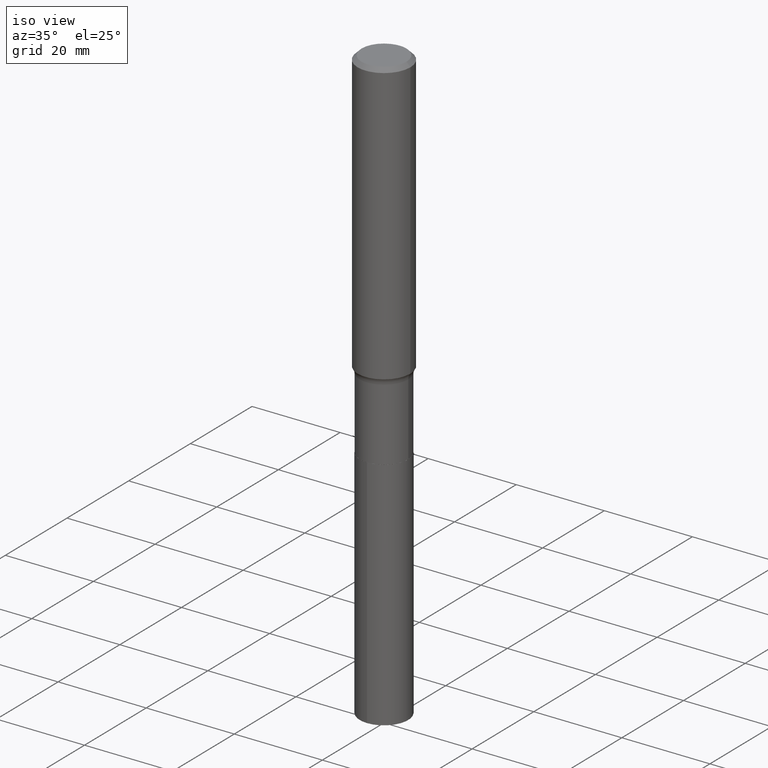
[diagram: clean part render]
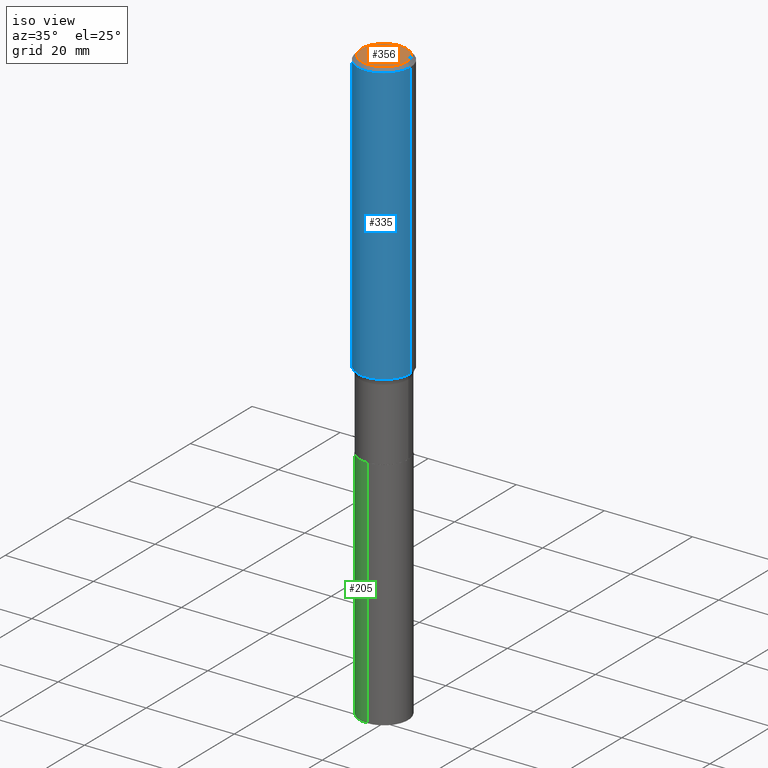
[diagram: same view with three faces highlighted in distinct colors, each labeled with its STEP entity id]
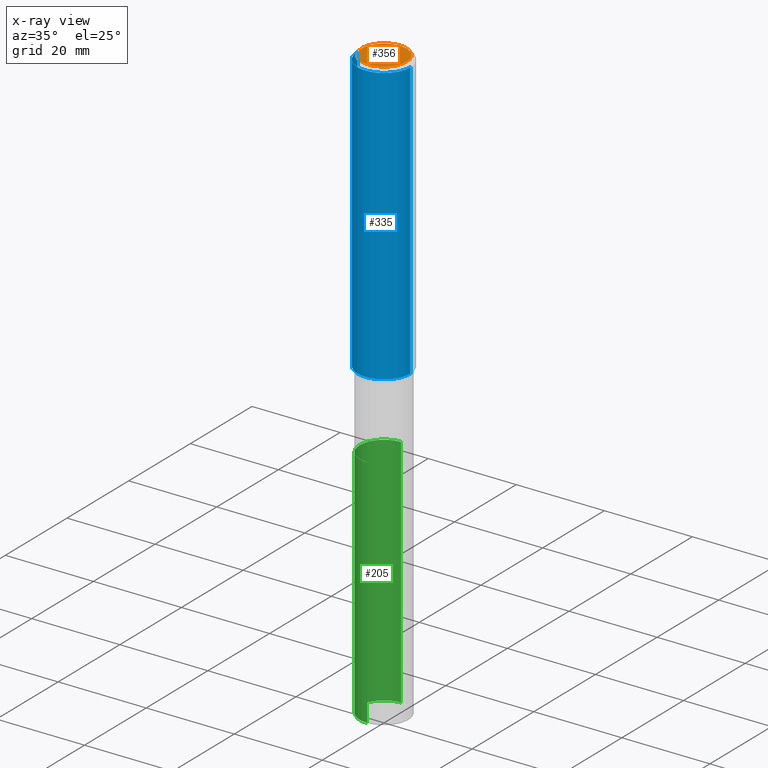
[diagram: x-ray of the same camera — body ghosted, the three highlighted faces saturated]
A machine part, iso view with three faces highlighted in distinct colors.
The next image is the same camera in x-ray (body ghosted, the three faces saturated) — at least one of them is partly hidden behind the body in this view.
Their STEP definitions:

[orange] entity #356 — the highlighted planar face has unit normal (0, -0, -1).
#24 = CIRCLE ( 'NONE', #40, 0.2007700000000000040 ) ;
#40 = AXIS2_PLACEMENT_3D ( 'NONE', #350, #312, #98 ) ;
#43 = CARTESIAN_POINT ( 'NONE',  ( -1.001697619218023151E-46, 1.430158722866391908E-32, 4.096137381448114529E-18 ) ) ;
#48 = CARTESIAN_POINT ( 'NONE',  ( -5.008488096090115757E-47, 7.150793614331959538E-33, 2.048068690724057264E-18 ) ) ;
#79 = ORIENTED_EDGE ( 'NONE', *, *, #148, .T. ) ;
#98 = DIRECTION ( 'NONE',  ( 1.000000000000000000, -6.982962677686266711E-15, 4.876140833081945105E-29 ) ) ;
#103 = ORIENTED_EDGE ( 'NONE', *, *, #215, .T. ) ;
#104 = DIRECTION ( 'NONE',  ( -2.445468806185136597E-29, 3.491481338843145583E-15, 1.000000000000000000 ) ) ;
#127 = EDGE_LOOP ( 'NONE', ( #79, #103 ) ) ;
#143 = AXIS2_PLACEMENT_3D ( 'NONE', #43, #104, #147 ) ;
#147 = DIRECTION ( 'NONE',  ( 1.000000000000000000, -6.982962677686266711E-15, 4.876140833081945105E-29 ) ) ;
#148 = EDGE_CURVE ( 'NONE', #378, #192, #24, .T. ) ;
#192 = VERTEX_POINT ( 'NONE', #462 ) ;
#215 = EDGE_CURVE ( 'NONE', #192, #378, #225, .T. ) ;
#222 = CARTESIAN_POINT ( 'NONE',  ( -0.2007700000000000040, 1.463821008716676943E-15, 4.096137381438094301E-18 ) ) ;
#225 = CIRCLE ( 'NONE', #143, 0.2007700000000000040 ) ;
#312 = DIRECTION ( 'NONE',  ( -2.445468806185136597E-29, 3.491481338843145583E-15, 1.000000000000000000 ) ) ;
#336 = DIRECTION ( 'NONE',  ( 2.438088387897960049E-29, -3.491481338843145188E-15, -1.000000000000000000 ) ) ;
#342 = PLANE ( 'NONE',  #347 ) ;
#347 = AXIS2_PLACEMENT_3D ( 'NONE', #48, #336, #406 ) ;
#350 = CARTESIAN_POINT ( 'NONE',  ( -1.001697619218023151E-46, 1.430158722866391908E-32, 4.096137381448114529E-18 ) ) ;
#356 = ADVANCED_FACE ( 'NONE', ( #446 ), #342, .F. ) ;
#378 = VERTEX_POINT ( 'NONE', #222 ) ;
#406 = DIRECTION ( 'NONE',  ( -1.000000000000000000, 6.982962677686265922E-15, -4.876176775795935793E-29 ) ) ;
#446 = FACE_OUTER_BOUND ( 'NONE', #127, .T. ) ;
#462 = CARTESIAN_POINT ( 'NONE',  ( 0.2007700000000000040, -1.560767496960719869E-15, 4.096137381458473721E-18 ) ) ;

[blue] entity #335 — the highlighted cylindrical surface (edge-blend (fillet) strip) has radius 5.9995 mm, axis along (-0, 0, 1).
#12 = DIRECTION ( 'NONE',  ( 1.000000000000000000, -6.982962677686266711E-15, 0.000000000000000000 ) ) ;
#18 = VERTEX_POINT ( 'NONE', #390 ) ;
#44 = DIRECTION ( 'NONE',  ( -2.445468806185136597E-29, 3.491481338843145583E-15, 1.000000000000000000 ) ) ;
#67 = DIRECTION ( 'NONE',  ( -2.445468806185136877E-29, 3.491481338843145188E-15, 1.000000000000000000 ) ) ;
#93 = EDGE_CURVE ( 'NONE', #145, #452, #415, .T. ) ;
#105 = AXIS2_PLACEMENT_3D ( 'NONE', #218, #44, #186 ) ;
#107 = FACE_OUTER_BOUND ( 'NONE', #224, .T. ) ;
#114 = AXIS2_PLACEMENT_3D ( 'NONE', #419, #199, #454 ) ;
#137 = ORIENTED_EDGE ( 'NONE', *, *, #386, .F. ) ;
#145 = VERTEX_POINT ( 'NONE', #383 ) ;
#162 = VECTOR ( 'NONE', #67, 39.37007874015748143 ) ;
#186 = DIRECTION ( 'NONE',  ( 1.000000000000000000, -6.982962677686266711E-15, 4.876176775795936353E-29 ) ) ;
#194 = CARTESIAN_POINT ( 'NONE',  ( -0.2362000000000001598, 1.678301941865357775E-15, -1.161852468318209598E-29 ) ) ;
#197 = VERTEX_POINT ( 'NONE', #246 ) ;
#199 = DIRECTION ( 'NONE',  ( -2.445468806185136597E-29, 3.491481338843145583E-15, 1.000000000000000000 ) ) ;
#218 = CARTESIAN_POINT ( 'NONE',  ( 0.000000000000000000, 0.000000000000000000, 0.000000000000000000 ) ) ;
#224 = EDGE_LOOP ( 'NONE', ( #137, #299, #230, #296 ) ) ;
#227 = DIRECTION ( 'NONE',  ( -2.445468806185136597E-29, 3.491481338843145583E-15, 1.000000000000000000 ) ) ;
#230 = ORIENTED_EDGE ( 'NONE', *, *, #260, .T. ) ;
#246 = CARTESIAN_POINT ( 'NONE',  ( -0.2361999999999999933, -2.766204545647972550E-15, -0.03543000000000023908 ) ) ;
#256 = LINE ( 'NONE', #194, #303 ) ;
#260 = EDGE_CURVE ( 'NONE', #452, #18, #286, .T. ) ;
#261 = DIRECTION ( 'NONE',  ( -2.445468806185136877E-29, 3.491481338843145188E-15, 1.000000000000000000 ) ) ;
#286 = LINE ( 'NONE', #395, #162 ) ;
#287 = CIRCLE ( 'NONE', #405, 0.2361999999999999933 ) ;
#296 = ORIENTED_EDGE ( 'NONE', *, *, #361, .F. ) ;
#299 = ORIENTED_EDGE ( 'NONE', *, *, #93, .T. ) ;
#303 = VECTOR ( 'NONE', #261, 39.37007874015748143 ) ;
#335 = ADVANCED_FACE ( 'NONE', ( #107 ), #401, .T. ) ;
#361 = EDGE_CURVE ( 'NONE', #197, #18, #287, .T. ) ;
#374 = CARTESIAN_POINT ( 'NONE',  ( 8.664295980313996991E-31, -1.237031838352134818E-16, -0.03543000000000023908 ) ) ;
#383 = CARTESIAN_POINT ( 'NONE',  ( -0.2362000000000004096, -7.087007849326089886E-15, -2.510484502287419595 ) ) ;
#386 = EDGE_CURVE ( 'NONE', #145, #197, #256, .T. ) ;
#390 = CARTESIAN_POINT ( 'NONE',  ( 0.2361999999999999933, -1.773078968304709711E-15, -0.03543000000000023908 ) ) ;
#395 = CARTESIAN_POINT ( 'NONE',  ( 0.2362000000000001598, -1.649375784469497314E-15, 1.151752954443000929E-29 ) ) ;
#401 = CYLINDRICAL_SURFACE ( 'NONE', #105, 0.2362000000000001598 ) ;
#404 = CARTESIAN_POINT ( 'NONE',  ( 0.2362000000000004096, -1.041468557566094675E-14, -2.510484502287419595 ) ) ;
#405 = AXIS2_PLACEMENT_3D ( 'NONE', #374, #227, #12 ) ;
#415 = CIRCLE ( 'NONE', #114, 0.2362000000000003264 ) ;
#419 = CARTESIAN_POINT ( 'NONE',  ( 6.139311538755103453E-29, -8.765309791191448647E-15, -2.510484502287419595 ) ) ;
#452 = VERTEX_POINT ( 'NONE', #404 ) ;
#454 = DIRECTION ( 'NONE',  ( 1.000000000000000000, -6.982962677686263555E-15, 0.000000000000000000 ) ) ;

[green] entity #205 — the highlighted cylindrical surface (edge-blend (fillet) strip) has radius 5.5004 mm, axis along (-0, 0, 1).
#1 = CARTESIAN_POINT ( 'NONE',  ( 1.538680294288627061E-15, 0.2165499999999888070, -3.209000000000001407 ) ) ;
#7 = DIRECTION ( 'NONE',  ( -6.982962677686265133E-15, -1.000000000000000000, 2.523064413451178124E-15 ) ) ;
#27 = DIRECTION ( 'NONE',  ( -2.445740082576205296E-29, 3.491092855611041770E-15, 1.000000000000000000 ) ) ;
#58 = CARTESIAN_POINT ( 'NONE',  ( 1.299823801295359673E-28, -1.855640517026451512E-14, -5.315000000000001279 ) ) ;
#59 = DIRECTION ( 'NONE',  ( -6.982962677686265133E-15, -1.000000000000000000, 5.046128826902356247E-15 ) ) ;
#78 = EDGE_CURVE ( 'NONE', #290, #217, #202, .T. ) ;
#109 = CYLINDRICAL_SURFACE ( 'NONE', #172, 0.2165500000000000203 ) ;
#124 = AXIS2_PLACEMENT_3D ( 'NONE', #58, #27, #59 ) ;
#141 = DIRECTION ( 'NONE',  ( -2.445740082576205576E-29, 3.491092855611041770E-15, 1.000000000000000000 ) ) ;
#172 = AXIS2_PLACEMENT_3D ( 'NONE', #464, #216, #7 ) ;
#176 = CARTESIAN_POINT ( 'NONE',  ( -1.512160567852882528E-15, -0.2165500000000112057, -3.209000000000000075 ) ) ;
#177 = CARTESIAN_POINT ( 'NONE',  ( 7.847509399048105518E-29, -1.120416361634765640E-14, -3.209000000000000519 ) ) ;
#184 = EDGE_CURVE ( 'NONE', #294, #290, #277, .T. ) ;
#195 = ORIENTED_EDGE ( 'NONE', *, *, #231, .F. ) ;
#202 = LINE ( 'NONE', #176, #302 ) ;
#205 = ADVANCED_FACE ( 'NONE', ( #365 ), #109, .T. ) ;
#212 = DIRECTION ( 'NONE',  ( -6.982962677686265133E-15, -1.000000000000000000, 2.523064413451178124E-15 ) ) ;
#214 = CARTESIAN_POINT ( 'NONE',  ( -1.512160567852830858E-15, -0.2165500000000185610, -5.315000000000000391 ) ) ;
#216 = DIRECTION ( 'NONE',  ( -2.445740082576205296E-29, 3.491092855611041770E-15, 1.000000000000000000 ) ) ;
#217 = VERTEX_POINT ( 'NONE', #435 ) ;
#231 = EDGE_CURVE ( 'NONE', #294, #258, #393, .T. ) ;
#258 = VERTEX_POINT ( 'NONE', #1 ) ;
#277 = CIRCLE ( 'NONE', #124, 0.2165500000000000203 ) ;
#283 = CARTESIAN_POINT ( 'NONE',  ( 1.538680294288575194E-15, 0.2165499999999888070, -3.209000000000001407 ) ) ;
#290 = VERTEX_POINT ( 'NONE', #214 ) ;
#294 = VERTEX_POINT ( 'NONE', #399 ) ;
#297 = EDGE_LOOP ( 'NONE', ( #195, #325, #391, #449 ) ) ;
#302 = VECTOR ( 'NONE', #315, 39.37007874015748143 ) ;
#315 = DIRECTION ( 'NONE',  ( -2.445740082576205576E-29, 3.491092855611041770E-15, 1.000000000000000000 ) ) ;
#316 = DIRECTION ( 'NONE',  ( -2.445740082576205296E-29, 3.491092855611041770E-15, 1.000000000000000000 ) ) ;
#325 = ORIENTED_EDGE ( 'NONE', *, *, #184, .T. ) ;
#326 = VECTOR ( 'NONE', #141, 39.37007874015748143 ) ;
#349 = EDGE_CURVE ( 'NONE', #258, #217, #445, .T. ) ;
#365 = FACE_OUTER_BOUND ( 'NONE', #297, .T. ) ;
#391 = ORIENTED_EDGE ( 'NONE', *, *, #78, .T. ) ;
#393 = LINE ( 'NONE', #283, #326 ) ;
#398 = AXIS2_PLACEMENT_3D ( 'NONE', #177, #316, #212 ) ;
#399 = CARTESIAN_POINT ( 'NONE',  ( 1.538680294288601029E-15, 0.2165499999999814795, -5.315000000000003055 ) ) ;
#435 = CARTESIAN_POINT ( 'NONE',  ( -1.512160567852882528E-15, -0.2165500000000112057, -3.209000000000000075 ) ) ;
#445 = CIRCLE ( 'NONE', #398, 0.2165500000000000203 ) ;
#449 = ORIENTED_EDGE ( 'NONE', *, *, #349, .F. ) ;
#464 = CARTESIAN_POINT ( 'NONE',  ( 7.847509399048105518E-29, -1.120416361634765640E-14, -3.209000000000000519 ) ) ;